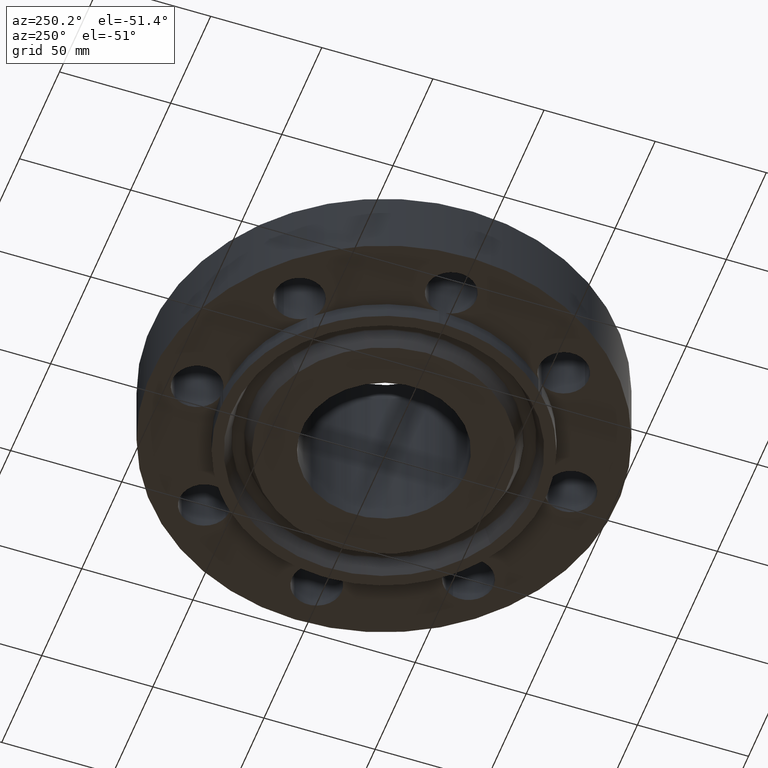
[diagram: clean part render]
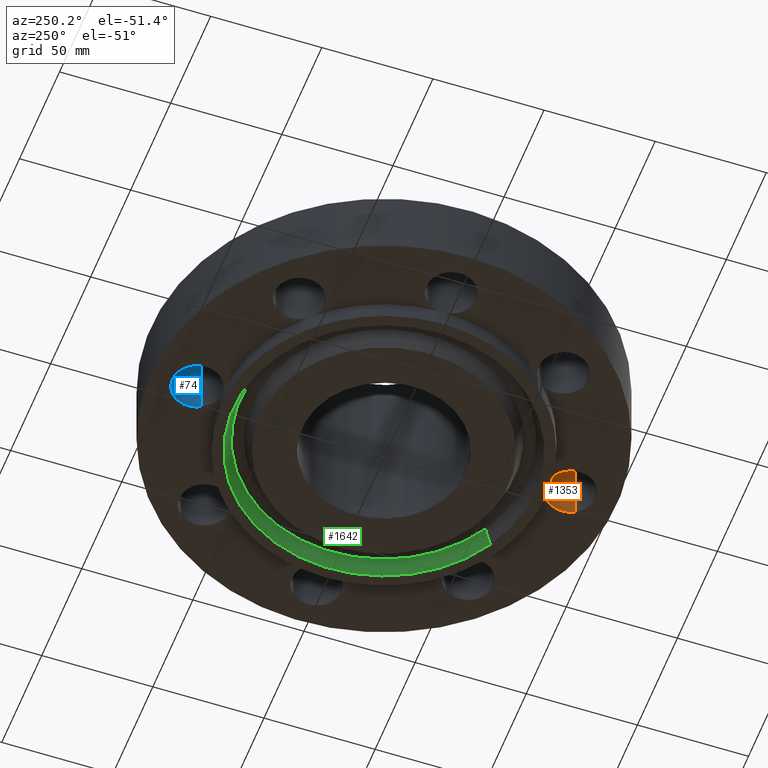
[diagram: same view with three faces highlighted in distinct colors, each labeled with its STEP entity id]
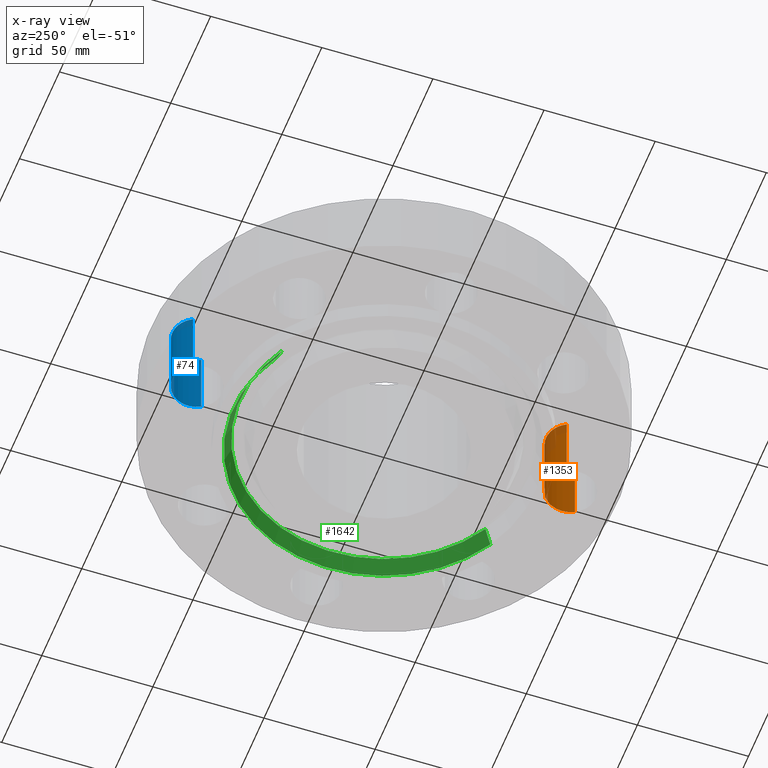
[diagram: x-ray of the same camera — body ghosted, the three highlighted faces saturated]
A machine part, auxiliary view with three faces highlighted in distinct colors.
The next image is the same camera in x-ray (body ghosted, the three faces saturated) — at least one of them is partly hidden behind the body in this view.
Their STEP definitions:

[orange] entity #1353 — the highlighted cylindrical surface (edge-blend (fillet) strip) has radius 11.176 mm, axis along (0, 0, -1).
#355=AXIS2_PLACEMENT_3D('Circle Axis2P3D',#353,#354,$) ;
#369=AXIS2_PLACEMENT_3D('Circle Axis2P3D',#367,#368,$) ;
#545=AXIS2_PLACEMENT_3D('Circle Axis2P3D',#543,#544,$) ;
#716=AXIS2_PLACEMENT_3D('Circle Axis2P3D',#714,#715,$) ;
#1326=AXIS2_PLACEMENT_3D('Cylinder Axis2P3D',#1323,#1324,#1325) ;
#350=CARTESIAN_POINT('Vertex',(-0.061640903685,-2.87433912388,-2.60212498967E-011)) ;
#353=CARTESIAN_POINT('Axis2P3D Location',(1.70622780996E-010,-3.31000000019,0.)) ;
#357=CARTESIAN_POINT('Vertex',(-0.386136327247,-3.09905276304,0.)) ;
#364=CARTESIAN_POINT('Vertex',(0.386136327247,-3.52094723697,0.)) ;
#367=CARTESIAN_POINT('Axis2P3D Location',(-9.86692792213E-011,-3.31000000003,0.)) ;
#371=CARTESIAN_POINT('Vertex',(0.061640903685,-2.87433912388,-2.60212498967E-011)) ;
#543=CARTESIAN_POINT('Axis2P3D Location',(1.74838271595E-017,-3.31000000003,1.25000000001)) ;
#547=CARTESIAN_POINT('Vertex',(-0.386136327236,-3.09905276303,1.24999999999)) ;
#549=CARTESIAN_POINT('Vertex',(0.386136327233,-3.520947237,1.24999999999)) ;
#711=CARTESIAN_POINT('Vertex',(0.061640903685,-2.87433912388,-0.312999999983)) ;
#714=CARTESIAN_POINT('Axis2P3D Location',(8.74191357973E-018,-3.30999999624,-0.313000000001)) ;
#718=CARTESIAN_POINT('Vertex',(-0.061640903685,-2.87433912388,-0.312999999983)) ;
#1304=CARTESIAN_POINT('Line Origine',(-0.061640903685,-2.87433912388,-0.156500000005)) ;
#1323=CARTESIAN_POINT('Axis2P3D Location',(4.05358090519E-016,-3.31000000001,1.24606299213)) ;
#1328=CARTESIAN_POINT('Line Origine',(-0.386136327233,-3.09905276302,0.468500000021)) ;
#1333=CARTESIAN_POINT('Line Origine',(0.0616409036858,-2.87433912388,0.468500000021)) ;
#1338=CARTESIAN_POINT('Line Origine',(0.386136327233,-3.520947237,0.468500000021)) ;
#354=DIRECTION('Axis2P3D Direction',(0.,0.,-0.0393700787402)) ;
#368=DIRECTION('Axis2P3D Direction',(0.,0.,-0.0393700787402)) ;
#544=DIRECTION('Axis2P3D Direction',(0.,0.,-0.0393700787402)) ;
#715=DIRECTION('Axis2P3D Direction',(0.,0.,-0.0393700787402)) ;
#1305=DIRECTION('Vector Direction',(0.,0.,-0.0393700787402)) ;
#1324=DIRECTION('Axis2P3D Direction',(0.,0.,-0.0393700787402)) ;
#1325=DIRECTION('Axis2P3D XDirection',(-0.0345504945626,0.0188750212049,0.)) ;
#1329=DIRECTION('Vector Direction',(0.,0.,-0.0393700787402)) ;
#1334=DIRECTION('Vector Direction',(0.,0.,-0.0393700787402)) ;
#1339=DIRECTION('Vector Direction',(0.,0.,-0.0393700787402)) ;
#1306=VECTOR('Line Direction',#1305,0.0393700787402) ;
#1330=VECTOR('Line Direction',#1329,0.0393700787402) ;
#1335=VECTOR('Line Direction',#1334,0.0393700787402) ;
#1340=VECTOR('Line Direction',#1339,0.0393700787402) ;
#1344=ORIENTED_EDGE('',*,*,#1332,.F.) ;
#1345=ORIENTED_EDGE('',*,*,#359,.T.) ;
#1346=ORIENTED_EDGE('',*,*,#1308,.T.) ;
#1347=ORIENTED_EDGE('',*,*,#720,.T.) ;
#1348=ORIENTED_EDGE('',*,*,#1337,.F.) ;
#1349=ORIENTED_EDGE('',*,*,#373,.T.) ;
#1350=ORIENTED_EDGE('',*,*,#1342,.T.) ;
#1351=ORIENTED_EDGE('',*,*,#551,.F.) ;
#1353=ADVANCED_FACE('PartBody',(#1352),#1327,.F.) ;
#356=CIRCLE('generated circle',#355,0.44000000024) ;
#370=CIRCLE('generated circle',#369,0.440000000076) ;
#546=CIRCLE('generated circle',#545,0.44000000002) ;
#717=CIRCLE('generated circle',#716,0.439999996246) ;
#1327=CYLINDRICAL_SURFACE('generated cylinder',#1326,0.440000000002) ;
#359=EDGE_CURVE('',#358,#351,#356,.T.) ;
#373=EDGE_CURVE('',#372,#365,#370,.T.) ;
#551=EDGE_CURVE('',#548,#550,#546,.T.) ;
#720=EDGE_CURVE('',#719,#712,#717,.T.) ;
#1308=EDGE_CURVE('',#351,#719,#1307,.T.) ;
#1332=EDGE_CURVE('',#358,#548,#1331,.F.) ;
#1337=EDGE_CURVE('',#372,#712,#1336,.T.) ;
#1342=EDGE_CURVE('',#365,#550,#1341,.F.) ;
#1343=EDGE_LOOP('',(#1344,#1345,#1346,#1347,#1348,#1349,#1350,#1351)) ;
#1352=FACE_OUTER_BOUND('',#1343,.T.) ;
#1307=LINE('Line',#1304,#1306) ;
#1331=LINE('Line',#1328,#1330) ;
#1336=LINE('Line',#1333,#1335) ;
#1341=LINE('Line',#1338,#1340) ;
#351=VERTEX_POINT('',#350) ;
#358=VERTEX_POINT('',#357) ;
#365=VERTEX_POINT('',#364) ;
#372=VERTEX_POINT('',#371) ;
#548=VERTEX_POINT('',#547) ;
#550=VERTEX_POINT('',#549) ;
#712=VERTEX_POINT('',#711) ;
#719=VERTEX_POINT('',#718) ;

[blue] entity #74 — the highlighted cylindrical surface (edge-blend (fillet) strip) has radius 11.176 mm, axis along (0, -0, -1).
#38=AXIS2_PLACEMENT_3D('Cylinder Axis2P3D',#35,#36,#37) ;
#51=AXIS2_PLACEMENT_3D('Circle Axis2P3D',#49,#50,$) ;
#65=AXIS2_PLACEMENT_3D('Circle Axis2P3D',#63,#64,$) ;
#35=CARTESIAN_POINT('Axis2P3D Location',(0.,3.31000000001,1.24606299213)) ;
#40=CARTESIAN_POINT('Line Origine',(-0.386136327233,3.520947237,0.624999999989)) ;
#44=CARTESIAN_POINT('Vertex',(-0.386136327232,3.520947237,-1.06511475055E-011)) ;
#46=CARTESIAN_POINT('Vertex',(-0.386136327233,3.520947237,1.24999999999)) ;
#49=CARTESIAN_POINT('Axis2P3D Location',(0.,3.31000000001,-1.06511475055E-011)) ;
#53=CARTESIAN_POINT('Vertex',(0.386136327233,3.09905276302,-1.06511475055E-011)) ;
#56=CARTESIAN_POINT('Line Origine',(0.386136327233,3.09905276302,0.624999999989)) ;
#60=CARTESIAN_POINT('Vertex',(0.386136327236,3.09905276303,1.24999999999)) ;
#63=CARTESIAN_POINT('Axis2P3D Location',(0.,3.31000000001,1.24999999999)) ;
#36=DIRECTION('Axis2P3D Direction',(0.,-0.,-0.0393700787402)) ;
#37=DIRECTION('Axis2P3D XDirection',(-0.0345504945626,0.0188750212049,0.)) ;
#41=DIRECTION('Vector Direction',(0.,0.,-0.0393700787402)) ;
#50=DIRECTION('Axis2P3D Direction',(0.,-0.,-0.0393700787402)) ;
#57=DIRECTION('Vector Direction',(0.,0.,-0.0393700787402)) ;
#64=DIRECTION('Axis2P3D Direction',(0.,-0.,-0.0393700787402)) ;
#42=VECTOR('Line Direction',#41,0.0393700787402) ;
#58=VECTOR('Line Direction',#57,0.0393700787402) ;
#69=ORIENTED_EDGE('',*,*,#48,.F.) ;
#70=ORIENTED_EDGE('',*,*,#55,.T.) ;
#71=ORIENTED_EDGE('',*,*,#62,.T.) ;
#72=ORIENTED_EDGE('',*,*,#67,.F.) ;
#74=ADVANCED_FACE('PartBody',(#73),#39,.F.) ;
#52=CIRCLE('generated circle',#51,0.440000000002) ;
#66=CIRCLE('generated circle',#65,0.440000000002) ;
#39=CYLINDRICAL_SURFACE('generated cylinder',#38,0.440000000002) ;
#48=EDGE_CURVE('',#45,#47,#43,.F.) ;
#55=EDGE_CURVE('',#45,#54,#52,.T.) ;
#62=EDGE_CURVE('',#54,#61,#59,.F.) ;
#67=EDGE_CURVE('',#47,#61,#66,.T.) ;
#68=EDGE_LOOP('',(#69,#70,#71,#72)) ;
#73=FACE_OUTER_BOUND('',#68,.T.) ;
#43=LINE('Line',#40,#42) ;
#59=LINE('Line',#56,#58) ;
#45=VERTEX_POINT('',#44) ;
#47=VERTEX_POINT('',#46) ;
#54=VERTEX_POINT('',#53) ;
#61=VERTEX_POINT('',#60) ;

[green] entity #1642 — the highlighted conical surface has half-angle 23 deg.
#818=AXIS2_PLACEMENT_3D('Circle Axis2P3D',#816,#817,$) ;
#1629=AXIS2_PLACEMENT_3D('Cone Axis2P3D',#1626,#1627,#1628) ;
#1633=AXIS2_PLACEMENT_3D('Circle Axis2P3D',#1631,#1632,$) ;
#811=CARTESIAN_POINT('Vertex',(1.28102503915,-2.3449006054,-0.313000000001)) ;
#813=CARTESIAN_POINT('Vertex',(-1.28102503915,2.34490060534,-0.313000000001)) ;
#816=CARTESIAN_POINT('Axis2P3D Location',(4.3665228913E-011,-5.74532547521E-012,-0.313000000001)) ;
#1593=CARTESIAN_POINT('Line Origine',(-1.25109847736,2.29012040146,-0.165943667509)) ;
#1597=CARTESIAN_POINT('Vertex',(-1.22117191556,2.23534019754,-0.0188873350177)) ;
#1604=CARTESIAN_POINT('Vertex',(1.22117191556,-2.23534019754,-0.0188873350179)) ;
#1607=CARTESIAN_POINT('Line Origine',(1.25109847736,-2.29012040146,-0.165943667509)) ;
#1626=CARTESIAN_POINT('Axis2P3D Location',(0.,0.,-0.0188873350169)) ;
#1631=CARTESIAN_POINT('Axis2P3D Location',(0.,0.,-0.0188873350169)) ;
#817=DIRECTION('Axis2P3D Direction',(0.,0.,-0.0393700787402)) ;
#1594=DIRECTION('Vector Direction',(-0.00737505833566,0.0134999537303,-0.0362403485611)) ;
#1608=DIRECTION('Vector Direction',(0.00737505833566,-0.0134999537303,-0.0362403485611)) ;
#1627=DIRECTION('Axis2P3D Direction',(-0.,-0.,-0.0393700787402)) ;
#1628=DIRECTION('Axis2P3D XDirection',(-0.0188750212049,0.0345504945626,0.)) ;
#1632=DIRECTION('Axis2P3D Direction',(-0.,0.,-0.0393700787402)) ;
#1595=VECTOR('Line Direction',#1594,0.0393700787402) ;
#1609=VECTOR('Line Direction',#1608,0.0393700787402) ;
#1637=ORIENTED_EDGE('',*,*,#820,.T.) ;
#1638=ORIENTED_EDGE('',*,*,#1611,.T.) ;
#1639=ORIENTED_EDGE('',*,*,#1635,.T.) ;
#1640=ORIENTED_EDGE('',*,*,#1599,.F.) ;
#1642=ADVANCED_FACE('PartBody',(#1641),#1630,.F.) ;
#819=CIRCLE('generated circle',#818,2.672) ;
#1634=CIRCLE('generated circle',#1633,2.5471565806) ;
#1630=CONICAL_SURFACE('Cone',#1629,2.5471565806,0.401425727959) ;
#820=EDGE_CURVE('',#814,#812,#819,.T.) ;
#1599=EDGE_CURVE('',#814,#1598,#1596,.F.) ;
#1611=EDGE_CURVE('',#812,#1605,#1610,.F.) ;
#1635=EDGE_CURVE('',#1605,#1598,#1634,.F.) ;
#1636=EDGE_LOOP('',(#1637,#1638,#1639,#1640)) ;
#1641=FACE_OUTER_BOUND('',#1636,.T.) ;
#1596=LINE('Line',#1593,#1595) ;
#1610=LINE('Line',#1607,#1609) ;
#812=VERTEX_POINT('',#811) ;
#814=VERTEX_POINT('',#813) ;
#1598=VERTEX_POINT('',#1597) ;
#1605=VERTEX_POINT('',#1604) ;